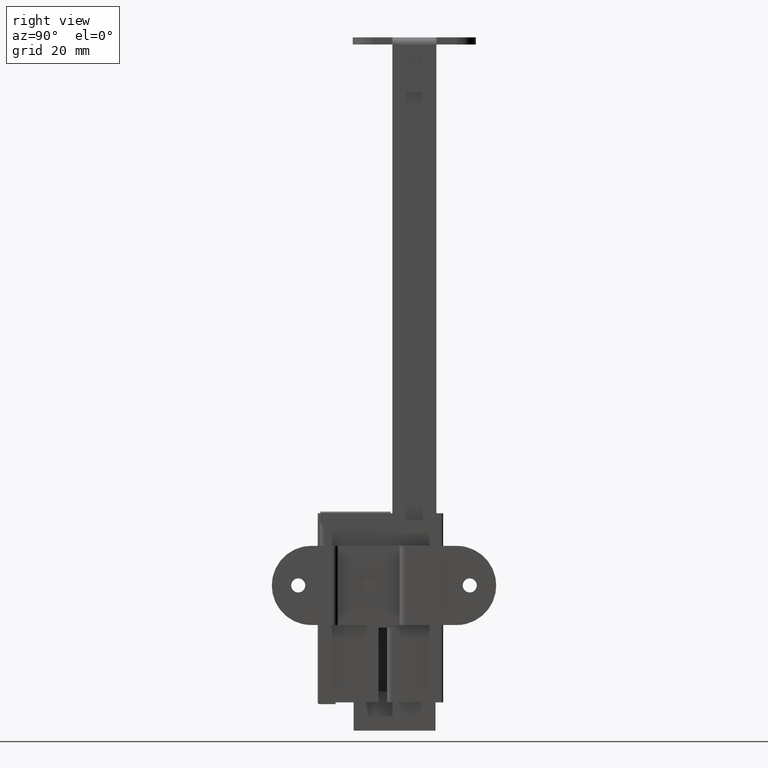
[diagram: clean part render]
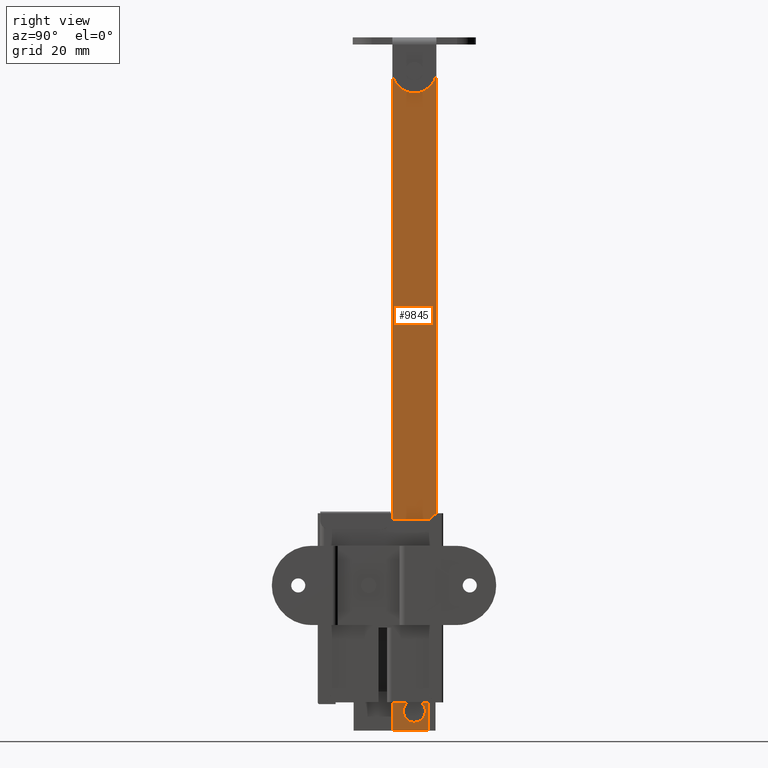
[diagram: same view with one face highlighted and labeled with its STEP entity id]
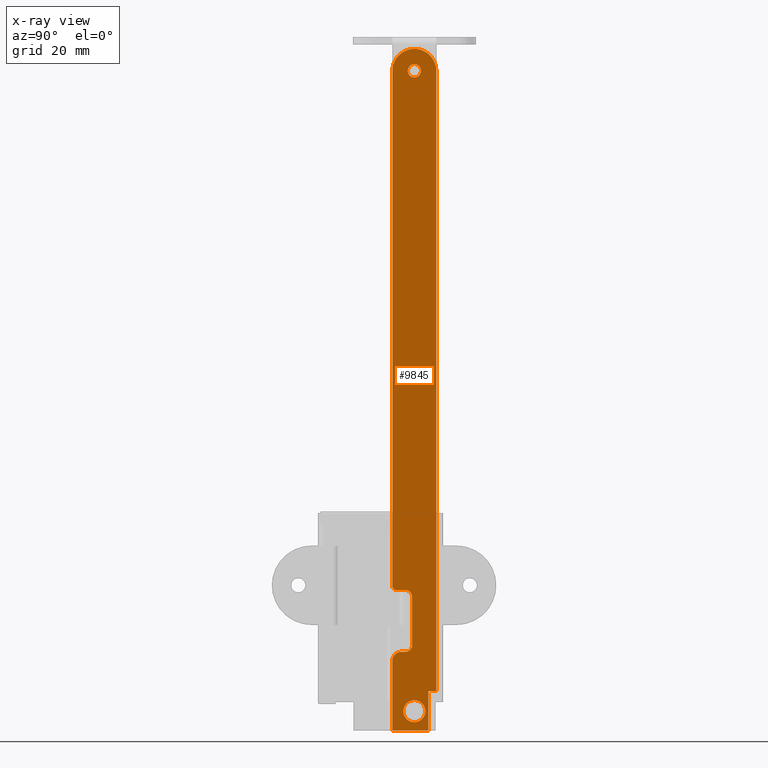
[diagram: x-ray of the same camera — body ghosted, the highlighted face saturated]
A machine part, right view. The second image highlights one B-rep face of the part: STEP entity #9845.
The next image is the same camera in x-ray: the body ghosted, the highlighted face saturated — about 0% of this face is hidden behind the body in this view.
In plain terms, the highlighted face is a freeform B-spline surface patch.
Its self-contained STEP definition (entity closure, byte-faithful):
#8933=CARTESIAN_POINT('',(3.000000000000115,1.495376000493585,-0.117686644940169));
#8934=VERTEX_POINT('',#8933);
#8940=CARTESIAN_POINT('',(3.000000000000115,8.939626E-015,1.500001999999930));
#8941=VERTEX_POINT('',#8940);
#8942=CARTESIAN_POINT('',(3.000000000000115,1.495376000493585,-0.117686644940169));
#8943=CARTESIAN_POINT('',(3.000000000000115,1.500000000000009,-0.058933161866163));
#8944=CARTESIAN_POINT('',(3.000000000000115,1.500000000000009,0.000001999999930));
#8945=CARTESIAN_POINT('',(3.000000000000115,1.500000000000010,1.500001999999930));
#8946=CARTESIAN_POINT('',(3.000000000000115,8.939626E-015,1.500001999999930));
#8954=(BOUNDED_CURVE()B_SPLINE_CURVE(2,(#8942,#8943,#8944,#8945,#8946),.UNSPECIFIED.,.F.,.U.)B_SPLINE_CURVE_WITH_KNOTS((3,2,3),(0.736331300323631,0.750000000000000,1.0),.UNSPECIFIED.)CURVE()GEOMETRIC_REPRESENTATION_ITEM()RATIONAL_B_SPLINE_CURVE((0.969723355526673,0.983986122219176,1.0,0.707106781186548,1.0))REPRESENTATION_ITEM(''));
#8955=EDGE_CURVE('',#8934,#8941,#8954,.T.);
#8957=CARTESIAN_POINT('',(3.000000000000115,-1.495376000493567,0.117690644940028));
#8958=VERTEX_POINT('',#8957);
#8959=CARTESIAN_POINT('',(3.000000000000115,8.939626E-015,1.500001999999930));
#8960=CARTESIAN_POINT('',(3.000000000000115,-1.386585734979093,1.500001999999930));
#8961=CARTESIAN_POINT('',(3.000000000000116,-1.495376000493567,0.117690644940028));
#8969=(BOUNDED_CURVE()B_SPLINE_CURVE(2,(#8959,#8960,#8961),.UNSPECIFIED.,.F.,.U.)B_SPLINE_CURVE_WITH_KNOTS((3,3),(0.0,0.236331300323631),.UNSPECIFIED.)CURVE()GEOMETRIC_REPRESENTATION_ITEM()RATIONAL_B_SPLINE_CURVE((1.0,0.723120658967372,0.969723355526673))REPRESENTATION_ITEM(''));
#8970=EDGE_CURVE('',#8941,#8958,#8969,.T.);
#9016=CARTESIAN_POINT('',(3.000000000000115,8.939626E-015,-1.499998000000071));
#9017=VERTEX_POINT('',#9016);
#9018=CARTESIAN_POINT('',(3.000000000000115,-1.495376000493567,0.117690644940028));
#9019=CARTESIAN_POINT('',(3.000000000000115,-1.499999999999991,0.058937161866022));
#9020=CARTESIAN_POINT('',(3.000000000000115,-1.499999999999991,0.000001999999930));
#9021=CARTESIAN_POINT('',(3.000000000000115,-1.499999999999991,-1.499998000000071));
#9022=CARTESIAN_POINT('',(3.000000000000115,8.939626E-015,-1.499998000000071));
#9030=(BOUNDED_CURVE()B_SPLINE_CURVE(2,(#9018,#9019,#9020,#9021,#9022),.UNSPECIFIED.,.F.,.U.)B_SPLINE_CURVE_WITH_KNOTS((3,2,3),(0.236331300323631,0.250000000000000,0.500000000000000),.UNSPECIFIED.)CURVE()GEOMETRIC_REPRESENTATION_ITEM()RATIONAL_B_SPLINE_CURVE((0.969723355526673,0.983986122219176,1.0,0.707106781186548,1.0))REPRESENTATION_ITEM(''));
#9031=EDGE_CURVE('',#8958,#9017,#9030,.T.);
#9033=CARTESIAN_POINT('',(3.000000000000115,8.939626E-015,-1.499998000000071));
#9034=CARTESIAN_POINT('',(3.000000000000116,1.386585734979109,-1.499998000000071));
#9035=CARTESIAN_POINT('',(3.000000000000115,1.495376000493584,-0.117686644940169));
#9043=(BOUNDED_CURVE()B_SPLINE_CURVE(2,(#9033,#9034,#9035),.UNSPECIFIED.,.F.,.U.)B_SPLINE_CURVE_WITH_KNOTS((3,3),(0.500000000000000,0.736331300323631),.UNSPECIFIED.)CURVE()GEOMETRIC_REPRESENTATION_ITEM()RATIONAL_B_SPLINE_CURVE((1.0,0.723120658967372,0.969723355526673))REPRESENTATION_ITEM(''));
#9044=EDGE_CURVE('',#9017,#8934,#9043,.T.);
#9115=CARTESIAN_POINT('',(3.000000000000115,2.492293334213400,-145.796135740837000));
#9116=VERTEX_POINT('',#9115);
#9122=CARTESIAN_POINT('',(3.000000000000115,0.0,-143.099988000000000));
#9123=VERTEX_POINT('',#9122);
#9124=CARTESIAN_POINT('',(3.000000000000115,2.492293334213401,-145.796135740836950));
#9125=CARTESIAN_POINT('',(3.000000000000116,2.500000000000000,-145.698213269043630));
#9126=CARTESIAN_POINT('',(3.000000000000115,2.500000000000000,-145.599988000000000));
#9127=CARTESIAN_POINT('',(3.000000000000115,2.500000000000000,-143.099988000000020));
#9128=CARTESIAN_POINT('',(3.000000000000115,0.0,-143.099988000000000));
#9136=(BOUNDED_CURVE()B_SPLINE_CURVE(2,(#9124,#9125,#9126,#9127,#9128),.UNSPECIFIED.,.F.,.U.)B_SPLINE_CURVE_WITH_KNOTS((3,2,3),(0.736331300424033,0.750000000000000,1.0),.UNSPECIFIED.)CURVE()GEOMETRIC_REPRESENTATION_ITEM()RATIONAL_B_SPLINE_CURVE((0.969723355736204,0.983986122336804,1.0,0.707106781186548,1.0))REPRESENTATION_ITEM(''));
#9137=EDGE_CURVE('',#9116,#9123,#9136,.T.);
#9139=CARTESIAN_POINT('',(3.000000000000115,-2.492293334213400,-145.403840259162990));
#9140=VERTEX_POINT('',#9139);
#9141=CARTESIAN_POINT('',(3.000000000000115,0.0,-143.099988000000000));
#9142=CARTESIAN_POINT('',(3.000000000000115,-2.310976226322865,-143.099988000000000));
#9143=CARTESIAN_POINT('',(3.000000000000115,-2.492293334213400,-145.403840259163050));
#9151=(BOUNDED_CURVE()B_SPLINE_CURVE(2,(#9141,#9142,#9143),.UNSPECIFIED.,.F.,.U.)B_SPLINE_CURVE_WITH_KNOTS((3,3),(0.0,0.236331300424033),.UNSPECIFIED.)CURVE()GEOMETRIC_REPRESENTATION_ITEM()RATIONAL_B_SPLINE_CURVE((1.0,0.723120658849744,0.969723355736203))REPRESENTATION_ITEM(''));
#9152=EDGE_CURVE('',#9123,#9140,#9151,.T.);
#9198=CARTESIAN_POINT('',(3.000000000000115,0.0,-148.099988000000000));
#9199=VERTEX_POINT('',#9198);
#9200=CARTESIAN_POINT('',(3.000000000000114,-2.492293334213401,-145.403840259163020));
#9201=CARTESIAN_POINT('',(3.000000000000115,-2.500000000000000,-145.501762730956500));
#9202=CARTESIAN_POINT('',(3.000000000000115,-2.500000000000000,-145.599988000000000));
#9203=CARTESIAN_POINT('',(3.000000000000115,-2.500000000000000,-148.099987999999970));
#9204=CARTESIAN_POINT('',(3.000000000000115,0.0,-148.099988000000000));
#9212=(BOUNDED_CURVE()B_SPLINE_CURVE(2,(#9200,#9201,#9202,#9203,#9204),.UNSPECIFIED.,.F.,.U.)B_SPLINE_CURVE_WITH_KNOTS((3,2,3),(0.236331300424033,0.250000000000000,0.500000000000000),.UNSPECIFIED.)CURVE()GEOMETRIC_REPRESENTATION_ITEM()RATIONAL_B_SPLINE_CURVE((0.969723355736203,0.983986122336803,1.0,0.707106781186548,1.0))REPRESENTATION_ITEM(''));
#9213=EDGE_CURVE('',#9140,#9199,#9212,.T.);
#9215=CARTESIAN_POINT('',(3.000000000000115,0.0,-148.099988000000000));
#9216=CARTESIAN_POINT('',(3.000000000000115,2.310976226322872,-148.099987999999940));
#9217=CARTESIAN_POINT('',(3.000000000000115,2.492293334213401,-145.796135740836950));
#9225=(BOUNDED_CURVE()B_SPLINE_CURVE(2,(#9215,#9216,#9217),.UNSPECIFIED.,.F.,.U.)B_SPLINE_CURVE_WITH_KNOTS((3,3),(0.500000000000000,0.736331300424033),.UNSPECIFIED.)CURVE()GEOMETRIC_REPRESENTATION_ITEM()RATIONAL_B_SPLINE_CURVE((1.0,0.723120658849744,0.969723355736204))REPRESENTATION_ITEM(''));
#9226=EDGE_CURVE('',#9199,#9116,#9225,.T.);
#9259=CARTESIAN_POINT('',(3.000000000000115,3.200012000000000,-141.099985000000000));
#9260=VERTEX_POINT('',#9259);
#9266=CARTESIAN_POINT('',(3.000000000000115,3.200012000000000,-149.999985000000010));
#9267=VERTEX_POINT('',#9266);
#9268=CARTESIAN_POINT('',(3.000000000000115,3.200012000000000,-141.099985000000000));
#9269=CARTESIAN_POINT('',(3.000000000000115,3.200012000000000,-149.999985000000010));
#9270=QUASI_UNIFORM_CURVE('',1,(#9268,#9269),.UNSPECIFIED.,.F.,.U.);
#9271=EDGE_CURVE('',#9260,#9267,#9270,.T.);
#9293=CARTESIAN_POINT('',(3.000000000000115,4.999999999999890,-141.099985000000000));
#9294=VERTEX_POINT('',#9293);
#9300=CARTESIAN_POINT('',(3.000000000000115,4.999999999999890,-141.099985000000000));
#9301=CARTESIAN_POINT('',(3.000000000000115,3.200012000000000,-141.099985000000000));
#9302=QUASI_UNIFORM_CURVE('',1,(#9300,#9301),.UNSPECIFIED.,.F.,.U.);
#9303=EDGE_CURVE('',#9294,#9260,#9302,.T.);
#9321=CARTESIAN_POINT('',(3.000000000000115,4.999999999999890,5.684342E-014));
#9322=VERTEX_POINT('',#9321);
#9328=CARTESIAN_POINT('',(3.000000000000115,4.999999999999890,5.684342E-014));
#9329=CARTESIAN_POINT('',(3.000000000000115,4.999999999999890,-141.099985000000000));
#9330=QUASI_UNIFORM_CURVE('',1,(#9328,#9329),.UNSPECIFIED.,.F.,.U.);
#9331=EDGE_CURVE('',#9322,#9294,#9330,.T.);
#9372=CARTESIAN_POINT('',(3.000000000000115,-5.0,5.684342E-014));
#9373=VERTEX_POINT('',#9372);
#9379=CARTESIAN_POINT('',(3.000000000000115,4.999999999999883,5.684342E-014));
#9380=CARTESIAN_POINT('',(3.000000000000115,4.999999999999883,4.999999999999997));
#9381=CARTESIAN_POINT('',(3.000000000000115,-5.684342E-014,4.999999999999997));
#9382=CARTESIAN_POINT('',(3.000000000000115,-4.999999999999997,4.999999999999997));
#9383=CARTESIAN_POINT('',(3.000000000000115,-4.999999999999997,5.684342E-014));
#9391=(BOUNDED_CURVE()B_SPLINE_CURVE(2,(#9379,#9380,#9381,#9382,#9383),.UNSPECIFIED.,.F.,.U.)B_SPLINE_CURVE_WITH_KNOTS((3,2,3),(0.0,0.500000000000000,1.0),.UNSPECIFIED.)CURVE()GEOMETRIC_REPRESENTATION_ITEM()RATIONAL_B_SPLINE_CURVE((1.0,0.707106781186548,1.0,0.707106781186548,1.0))REPRESENTATION_ITEM(''));
#9392=EDGE_CURVE('',#9322,#9373,#9391,.T.);
#9410=CARTESIAN_POINT('',(3.000000000000115,-5.0,-117.099984842920410));
#9411=VERTEX_POINT('',#9410);
#9417=CARTESIAN_POINT('',(3.000000000000115,-5.0,-117.099984842920410));
#9418=CARTESIAN_POINT('',(3.000000000000115,-5.0,5.684342E-014));
#9419=QUASI_UNIFORM_CURVE('',1,(#9417,#9418),.UNSPECIFIED.,.F.,.U.);
#9420=EDGE_CURVE('',#9411,#9373,#9419,.T.);
#9457=CARTESIAN_POINT('',(3.000000000000115,-4.0,-118.099985000000000));
#9458=VERTEX_POINT('',#9457);
#9464=CARTESIAN_POINT('',(3.000000000000115,-4.999999999999988,-117.099984842920410));
#9465=CARTESIAN_POINT('',(3.000000000000116,-5.000000065064496,-117.514198451301100));
#9466=CARTESIAN_POINT('',(3.000000000000115,-4.707106836722571,-117.807091725650490));
#9467=CARTESIAN_POINT('',(3.000000000000116,-4.414213608380646,-118.099985000000020));
#9468=CARTESIAN_POINT('',(3.000000000000115,-4.0,-118.099985000000000));
#9476=(BOUNDED_CURVE()B_SPLINE_CURVE(2,(#9464,#9465,#9466,#9467,#9468),.UNSPECIFIED.,.F.,.U.)B_SPLINE_CURVE_WITH_KNOTS((3,2,3),(0.0,0.500000000000000,1.0),.UNSPECIFIED.)CURVE()GEOMETRIC_REPRESENTATION_ITEM()RATIONAL_B_SPLINE_CURVE((1.0,0.923879517483346,1.0,0.923879517483346,1.0))REPRESENTATION_ITEM(''));
#9477=EDGE_CURVE('',#9411,#9458,#9476,.T.);
#9495=CARTESIAN_POINT('',(3.000000000000115,-2.000000078539816,-118.099985000000000));
#9496=VERTEX_POINT('',#9495);
#9502=CARTESIAN_POINT('',(3.000000000000115,-2.000000078539816,-118.099985000000000));
#9503=CARTESIAN_POINT('',(3.000000000000115,-4.0,-118.099985000000000));
#9504=QUASI_UNIFORM_CURVE('',1,(#9502,#9503),.UNSPECIFIED.,.F.,.U.);
#9505=EDGE_CURVE('',#9496,#9458,#9504,.T.);
#9542=CARTESIAN_POINT('',(3.000000000000115,-0.500000000000000,-119.599985000000000));
#9543=VERTEX_POINT('',#9542);
#9549=CARTESIAN_POINT('',(3.000000000000115,-0.500000000000000,-119.599985000000000));
#9550=CARTESIAN_POINT('',(3.000000000000115,-0.500000000000000,-118.978664633436570));
#9551=CARTESIAN_POINT('',(3.000000000000115,-0.939339855988197,-118.539324800452210));
#9552=CARTESIAN_POINT('',(3.000000000000115,-1.378679711976394,-118.099984967467710));
#9553=CARTESIAN_POINT('',(3.000000000000115,-2.000000078539815,-118.099985000000000));
#9561=(BOUNDED_CURVE()B_SPLINE_CURVE(2,(#9549,#9550,#9551,#9552,#9553),.UNSPECIFIED.,.F.,.U.)B_SPLINE_CURVE_WITH_KNOTS((3,2,3),(0.0,0.500000000000000,1.0),.UNSPECIFIED.)CURVE()GEOMETRIC_REPRESENTATION_ITEM()RATIONAL_B_SPLINE_CURVE((1.0,0.923879527501972,1.0,0.923879527501972,1.0))REPRESENTATION_ITEM(''));
#9562=EDGE_CURVE('',#9543,#9496,#9561,.T.);
#9580=CARTESIAN_POINT('',(3.000000000000115,-0.500000000000000,-130.599985000000000));
#9581=VERTEX_POINT('',#9580);
#9587=CARTESIAN_POINT('',(3.000000000000115,-0.500000000000000,-130.599985000000000));
#9588=CARTESIAN_POINT('',(3.000000000000115,-0.500000000000000,-119.599985000000000));
#9589=QUASI_UNIFORM_CURVE('',1,(#9587,#9588),.UNSPECIFIED.,.F.,.U.);
#9590=EDGE_CURVE('',#9581,#9543,#9589,.T.);
#9625=CARTESIAN_POINT('',(3.000000000000115,-2.0,-132.099985000000000));
#9626=VERTEX_POINT('',#9625);
#9632=CARTESIAN_POINT('',(3.000000000000115,-2.0,-132.099985000000000));
#9633=CARTESIAN_POINT('',(3.000000000000115,-0.500000000000000,-132.099985000000000));
#9634=CARTESIAN_POINT('',(3.000000000000115,-0.500000000000000,-130.599985000000000));
#9642=(BOUNDED_CURVE()B_SPLINE_CURVE(2,(#9632,#9633,#9634),.UNSPECIFIED.,.F.,.U.)CURVE()GEOMETRIC_REPRESENTATION_ITEM()QUASI_UNIFORM_CURVE()RATIONAL_B_SPLINE_CURVE((1.0,0.707106781186548,1.0))REPRESENTATION_ITEM(''));
#9643=EDGE_CURVE('',#9626,#9581,#9642,.T.);
#9661=CARTESIAN_POINT('',(3.000000000000115,-3.000000104719755,-132.099985000000000));
#9662=VERTEX_POINT('',#9661);
#9668=CARTESIAN_POINT('',(3.000000000000115,-3.000000104719755,-132.099985000000000));
#9669=CARTESIAN_POINT('',(3.000000000000115,-2.0,-132.099985000000000));
#9670=QUASI_UNIFORM_CURVE('',1,(#9668,#9669),.UNSPECIFIED.,.F.,.U.);
#9671=EDGE_CURVE('',#9662,#9626,#9670,.T.);
#9706=CARTESIAN_POINT('',(3.000000000000115,-5.0,-134.099985000000000));
#9707=VERTEX_POINT('',#9706);
#9713=CARTESIAN_POINT('',(3.000000000000115,-3.000000104719755,-132.099985000000000));
#9714=CARTESIAN_POINT('',(3.000000000000115,-5.0,-132.099985104719760));
#9715=CARTESIAN_POINT('',(3.000000000000115,-5.0,-134.099985000000000));
#9723=(BOUNDED_CURVE()B_SPLINE_CURVE(2,(#9713,#9714,#9715),.UNSPECIFIED.,.F.,.U.)CURVE()GEOMETRIC_REPRESENTATION_ITEM()QUASI_UNIFORM_CURVE()RATIONAL_B_SPLINE_CURVE((1.0,0.707106799698560,1.0))REPRESENTATION_ITEM(''));
#9724=EDGE_CURVE('',#9662,#9707,#9723,.T.);
#9742=CARTESIAN_POINT('',(3.000000000000115,-5.0,-149.999985000000010));
#9743=VERTEX_POINT('',#9742);
#9749=CARTESIAN_POINT('',(3.000000000000115,-5.0,-149.999985000000010));
#9750=CARTESIAN_POINT('',(3.000000000000115,-5.0,-134.099985000000000));
#9751=QUASI_UNIFORM_CURVE('',1,(#9749,#9750),.UNSPECIFIED.,.F.,.U.);
#9752=EDGE_CURVE('',#9743,#9707,#9751,.T.);
#9769=CARTESIAN_POINT('',(3.000000000000115,3.200012000000000,-149.999985000000010));
#9770=CARTESIAN_POINT('',(3.000000000000115,-5.0,-149.999985000000010));
#9771=QUASI_UNIFORM_CURVE('',1,(#9769,#9770),.UNSPECIFIED.,.F.,.U.);
#9772=EDGE_CURVE('',#9267,#9743,#9771,.T.);
#9812=CARTESIAN_POINT('',(3.000000000000085,-5.499499980618055,12.742248950328211));
#9813=CARTESIAN_POINT('',(3.000000000000085,5.499500248838846,12.742248950328211));
#9814=CARTESIAN_POINT('',(3.000000000000085,-5.499499980618055,-157.742238107753510));
#9815=CARTESIAN_POINT('',(3.000000000000085,5.499500248838846,-157.742238107753510));
#9816=B_SPLINE_SURFACE_WITH_KNOTS('',1,1,((#9812,#9814),(#9813,#9815)),.UNSPECIFIED.,.F.,.F.,.U.,(2,2),(2,2),(0.0,10.999000229456900),(0.0,170.484487058081700),.UNSPECIFIED.);
#9817=ORIENTED_EDGE('',*,*,#9772,.F.);
#9818=ORIENTED_EDGE('',*,*,#9271,.F.);
#9819=ORIENTED_EDGE('',*,*,#9303,.F.);
#9820=ORIENTED_EDGE('',*,*,#9331,.F.);
#9821=ORIENTED_EDGE('',*,*,#9392,.T.);
#9822=ORIENTED_EDGE('',*,*,#9420,.F.);
#9823=ORIENTED_EDGE('',*,*,#9477,.T.);
#9824=ORIENTED_EDGE('',*,*,#9505,.F.);
#9825=ORIENTED_EDGE('',*,*,#9562,.F.);
#9826=ORIENTED_EDGE('',*,*,#9590,.F.);
#9827=ORIENTED_EDGE('',*,*,#9643,.F.);
#9828=ORIENTED_EDGE('',*,*,#9671,.F.);
#9829=ORIENTED_EDGE('',*,*,#9724,.T.);
#9830=ORIENTED_EDGE('',*,*,#9752,.F.);
#9831=EDGE_LOOP('',(#9817,#9818,#9819,#9820,#9821,#9822,#9823,#9824,#9825,#9826,#9827,#9828,#9829,#9830));
#9832=FACE_OUTER_BOUND('',#9831,.T.);
#9833=ORIENTED_EDGE('',*,*,#9226,.F.);
#9834=ORIENTED_EDGE('',*,*,#9213,.F.);
#9835=ORIENTED_EDGE('',*,*,#9152,.F.);
#9836=ORIENTED_EDGE('',*,*,#9137,.F.);
#9837=EDGE_LOOP('',(#9833,#9834,#9835,#9836));
#9838=FACE_BOUND('',#9837,.T.);
#9839=ORIENTED_EDGE('',*,*,#9044,.F.);
#9840=ORIENTED_EDGE('',*,*,#9031,.F.);
#9841=ORIENTED_EDGE('',*,*,#8970,.F.);
#9842=ORIENTED_EDGE('',*,*,#8955,.F.);
#9843=EDGE_LOOP('',(#9839,#9840,#9841,#9842));
#9844=FACE_BOUND('',#9843,.T.);
#9845=ADVANCED_FACE('',(#9832,#9838,#9844),#9816,.F.);